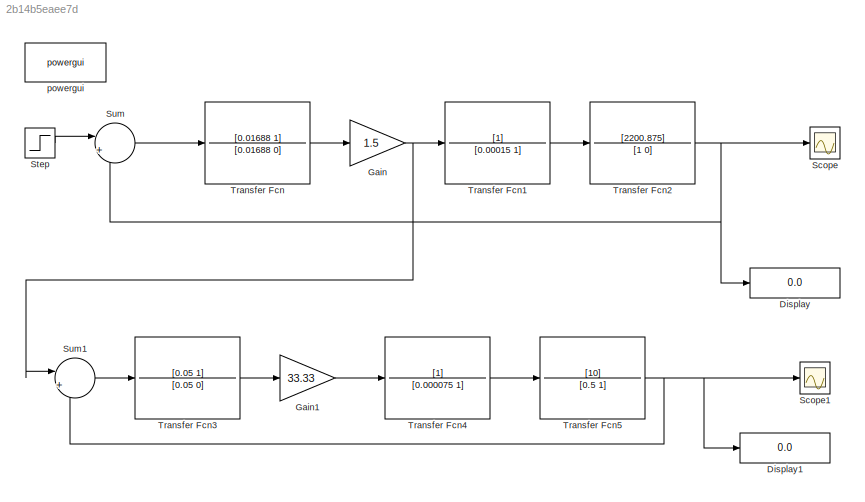
MODEL slx_2b14b5eaee7d
KIND model
CONFIG AbsTol = auto
CONFIG EnableMultiTasking = off
CONFIG FixedStep = auto
CONFIG MaxStep = auto
CONFIG MinStep = auto
CONFIG RelTol = 1e-3
CONFIG SampleTimeConstraint = Unconstrained
CONFIG SolverName = VariableStepAuto
CONFIG StartTime = 0.0
CONFIG StopTime = 2.0
BLOCK [Display] Display
  Decimation = 1
BLOCK [Display] Display1
  Decimation = 1
BLOCK [Gain] Gain
  Gain = 1.5
BLOCK [Gain] Gain1
  Gain = 33.33
BLOCK [Scope] Scope
  Floating = off
  NumInputPorts = 1
  ScopeSpecificationString = Simulink.scopes.TimeScopeBlockCfg('CurrentConfiguration', extmgr.ConfigurationSet(extmgr.Configuration('Core','General UI',true),extmgr.Configuration('Core','Source UI',true),extmgr.Configuration('Sources','WiredSimulink',true),extmgr.Configuration('Visuals','Time Domain',true,'SerializedDisplays',{struct('MinYLimReal','-103.02051','MaxYLimReal','927.1846','YLabelReal','','MinYLimMag',' 0.00000','...<+1343ch>
BLOCK [Scope] Scope1
  Floating = off
  NumInputPorts = 1
  ScopeSpecificationString = Simulink.scopes.TimeScopeBlockCfg('CurrentConfiguration', extmgr.ConfigurationSet(extmgr.Configuration('Core','General UI',true),extmgr.Configuration('Core','Source UI',true),extmgr.Configuration('Sources','WiredSimulink',true,'DataLoggingVariableName','ScopeData1'),extmgr.Configuration('Visuals','Time Domain',true,'SerializedDisplays',{struct('MinYLimReal','-6.82553','MaxYLimReal','54.42057','YLa...<+1376ch>
BLOCK [Step] Step
  After = 800
  Before = 400
  SampleTime = 0
BLOCK [Sum] Sum
  Inputs = |+-
BLOCK [Sum] Sum1
  Inputs = |+-
BLOCK [TransferFcn] Transfer Fcn
  Denominator = [0.01688 0]
  Numerator = [0.01688 1]
BLOCK [TransferFcn] Transfer Fcn1
  Denominator = [0.00015 1]
BLOCK [TransferFcn] Transfer Fcn2
  Denominator = [1 0]
  Numerator = [2200.875]
BLOCK [TransferFcn] Transfer Fcn3
  Denominator = [0.05 0]
  Numerator = [0.05 1]
BLOCK [TransferFcn] Transfer Fcn4
  Denominator = [0.000075 1]
BLOCK [TransferFcn] Transfer Fcn5
  Denominator = [0.5 1]
  Numerator = [10]
BLOCK [Reference] powergui  REF=spspowerguiLib/powergui
  LibrarySourceBlock = sps_lib/powergui
  Priority = 1
  SourceBlock = spspowerguiLib/powergui
  SourceType = PSB option menu block
LINE Gain1:1 -> Transfer Fcn4:1
NET Gain:1 -> Sum1:1, Transfer Fcn1:1
LINE Step:1 -> Sum:1
LINE Sum1:1 -> Transfer Fcn3:1
LINE Sum:1 -> Transfer Fcn:1
LINE Transfer Fcn1:1 -> Transfer Fcn2:1
NET Transfer Fcn2:1 -> Display:1, Scope:1, Sum:2
LINE Transfer Fcn3:1 -> Gain1:1
LINE Transfer Fcn4:1 -> Transfer Fcn5:1
NET Transfer Fcn5:1 -> Display1:1, Scope1:1, Sum1:2
LINE Transfer Fcn:1 -> Gain:1
note: NET lines group one-source signal fan-out (src -> all destinations, sorted); 1:1 wires keep LINE
